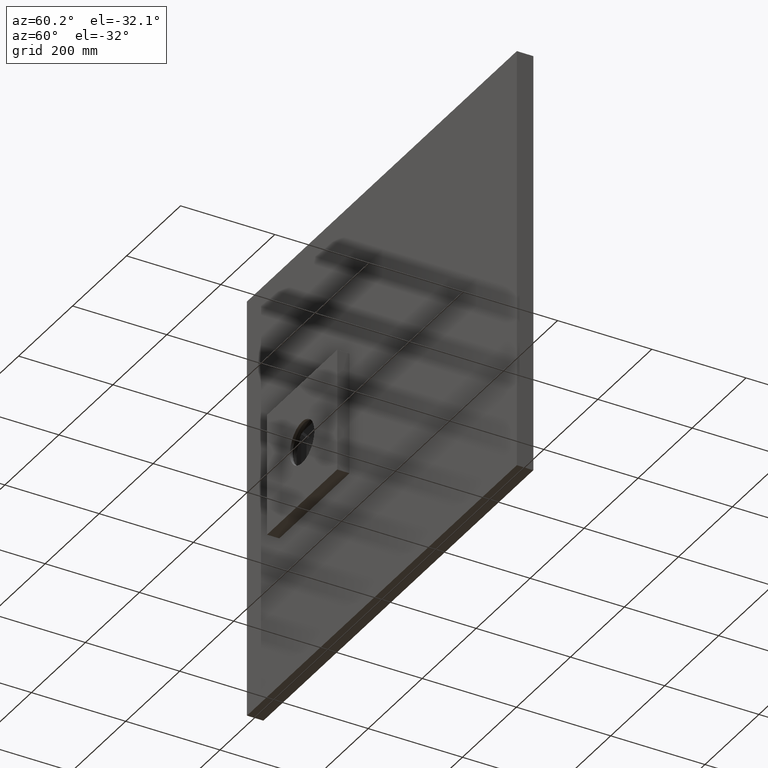
[diagram: clean part render]
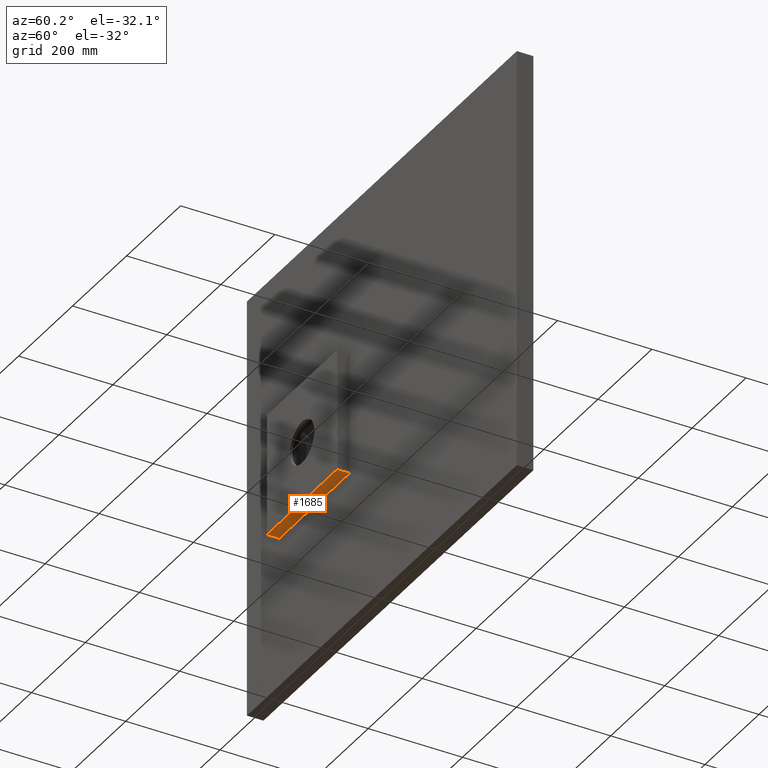
[diagram: same view with one face highlighted and labeled with its STEP entity id]
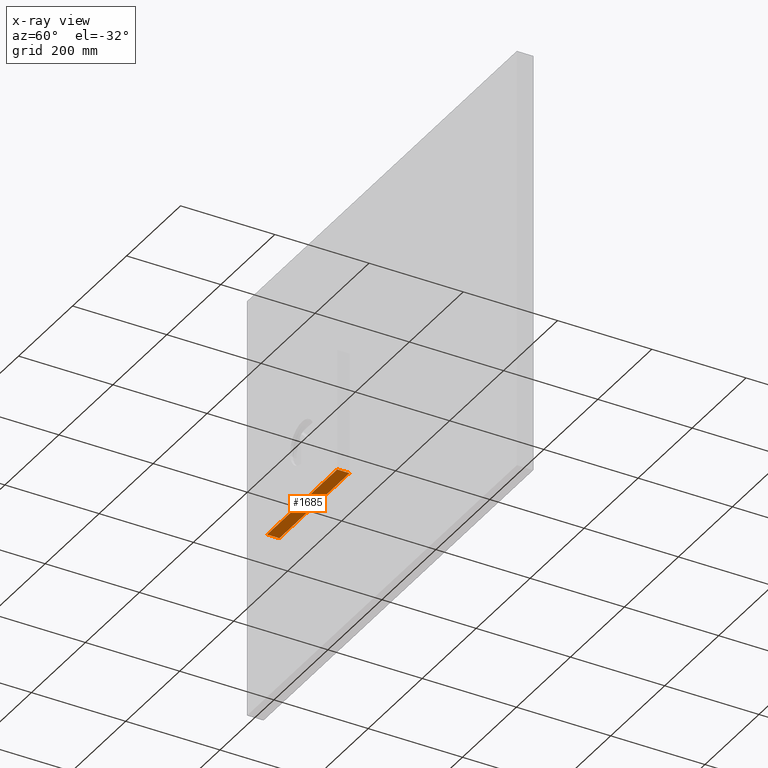
[diagram: x-ray of the same camera — body ghosted, the highlighted face saturated]
A machine part, auxiliary view. The second image highlights one B-rep face of the part: STEP entity #1685.
The next image is the same camera in x-ray: the body ghosted, the highlighted face saturated — about 0% of this face is hidden behind the body in this view.
In plain terms, the highlighted planar face has unit normal (-0, 0, 1).
Its self-contained STEP definition (entity closure, byte-faithful):
#263 = CARTESIAN_POINT ( 'NONE',  ( -379.9999999999998900, -26.00000000000002100, -130.0000000000002300 ) ) ;
#324 = LINE ( 'NONE', #534, #2441 ) ;
#325 = VERTEX_POINT ( 'NONE', #1857 ) ;
#371 = DIRECTION ( 'NONE',  ( -0.0000000000000000000, 1.000000000000000000, -0.0000000000000000000 ) ) ;
#438 = VERTEX_POINT ( 'NONE', #484 ) ;
#484 = CARTESIAN_POINT ( 'NONE',  ( -379.9999999999998900, 0.0000000000000000000, -130.0000000000002300 ) ) ;
#534 = CARTESIAN_POINT ( 'NONE',  ( -379.9999999999998900, 0.0000000000000000000, -130.0000000000002300 ) ) ;
#597 = FACE_OUTER_BOUND ( 'NONE', #812, .T. ) ;
#636 = ORIENTED_EDGE ( 'NONE', *, *, #2077, .F. ) ;
#690 = DIRECTION ( 'NONE',  ( -0.0000000000000000000, 1.000000000000000000, -0.0000000000000000000 ) ) ;
#812 = EDGE_LOOP ( 'NONE', ( #2289, #636, #2129, #1379 ) ) ;
#844 = DIRECTION ( 'NONE',  ( 1.000000000000000000, 0.0000000000000000000, 0.0000000000000000000 ) ) ;
#889 = VERTEX_POINT ( 'NONE', #3286 ) ;
#1049 = CARTESIAN_POINT ( 'NONE',  ( -120.0000000000001100, -26.00000000000002100, -130.0000000000002300 ) ) ;
#1069 = VECTOR ( 'NONE', #371, 1000.000000000000000 ) ;
#1102 = CARTESIAN_POINT ( 'NONE',  ( -379.9999999999998900, -26.00000000000002100, -130.0000000000002300 ) ) ;
#1263 = PLANE ( 'NONE',  #2758 ) ;
#1379 = ORIENTED_EDGE ( 'NONE', *, *, #2130, .T. ) ;
#1424 = EDGE_CURVE ( 'NONE', #2675, #889, #2605, .T. ) ;
#1646 = CARTESIAN_POINT ( 'NONE',  ( -379.9999999999998900, -26.00000000000002100, -130.0000000000002300 ) ) ;
#1662 = LINE ( 'NONE', #263, #1069 ) ;
#1685 = ADVANCED_FACE ( 'NONE', ( #597 ), #1263, .F. ) ;
#1857 = CARTESIAN_POINT ( 'NONE',  ( -120.0000000000001100, 0.0000000000000000000, -130.0000000000002300 ) ) ;
#1925 = VECTOR ( 'NONE', #690, 1000.000000000000000 ) ;
#2068 = DIRECTION ( 'NONE',  ( -0.0000000000000000000, 0.0000000000000000000, 1.000000000000000000 ) ) ;
#2077 = EDGE_CURVE ( 'NONE', #889, #325, #2967, .T. ) ;
#2129 = ORIENTED_EDGE ( 'NONE', *, *, #1424, .F. ) ;
#2130 = EDGE_CURVE ( 'NONE', #2675, #438, #1662, .T. ) ;
#2177 = EDGE_CURVE ( 'NONE', #438, #325, #324, .T. ) ;
#2274 = DIRECTION ( 'NONE',  ( 1.000000000000000000, 0.0000000000000000000, 0.0000000000000000000 ) ) ;
#2289 = ORIENTED_EDGE ( 'NONE', *, *, #2177, .T. ) ;
#2360 = DIRECTION ( 'NONE',  ( 1.000000000000000000, 0.0000000000000000000, 0.0000000000000000000 ) ) ;
#2441 = VECTOR ( 'NONE', #844, 1000.000000000000000 ) ;
#2605 = LINE ( 'NONE', #3254, #2842 ) ;
#2675 = VERTEX_POINT ( 'NONE', #1646 ) ;
#2758 = AXIS2_PLACEMENT_3D ( 'NONE', #1102, #2068, #2360 ) ;
#2842 = VECTOR ( 'NONE', #2274, 1000.000000000000000 ) ;
#2967 = LINE ( 'NONE', #1049, #1925 ) ;
#3254 = CARTESIAN_POINT ( 'NONE',  ( -379.9999999999998900, -26.00000000000002100, -130.0000000000002300 ) ) ;
#3286 = CARTESIAN_POINT ( 'NONE',  ( -120.0000000000001100, -26.00000000000002100, -130.0000000000002300 ) ) ;